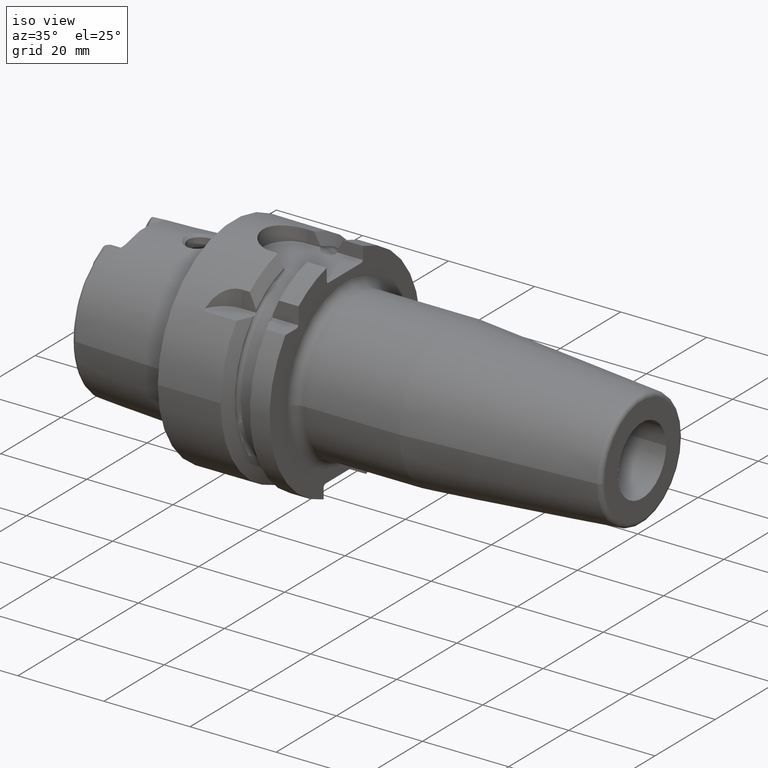
[diagram: clean part render]
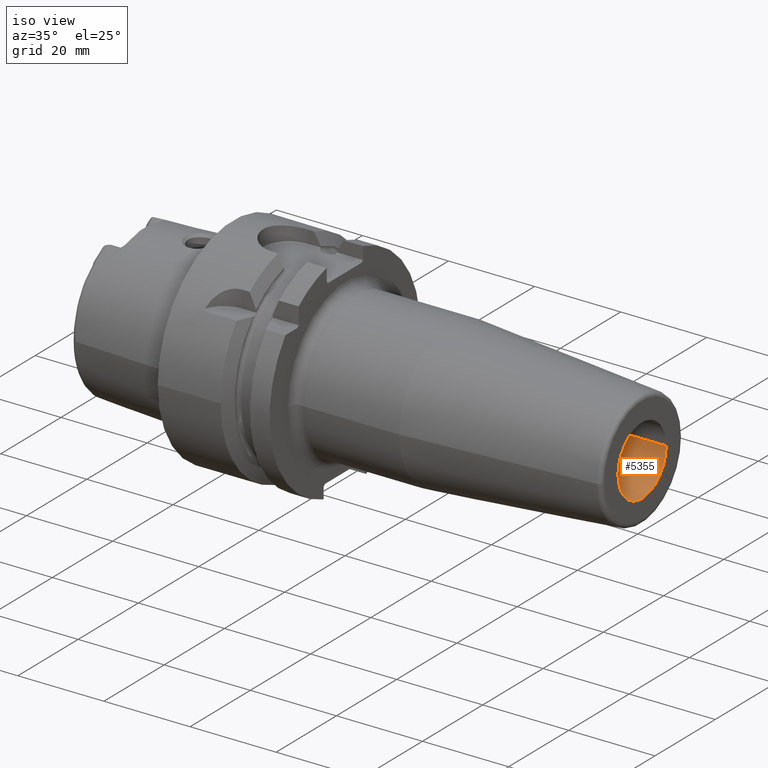
[diagram: same view with one face highlighted and labeled with its STEP entity id]
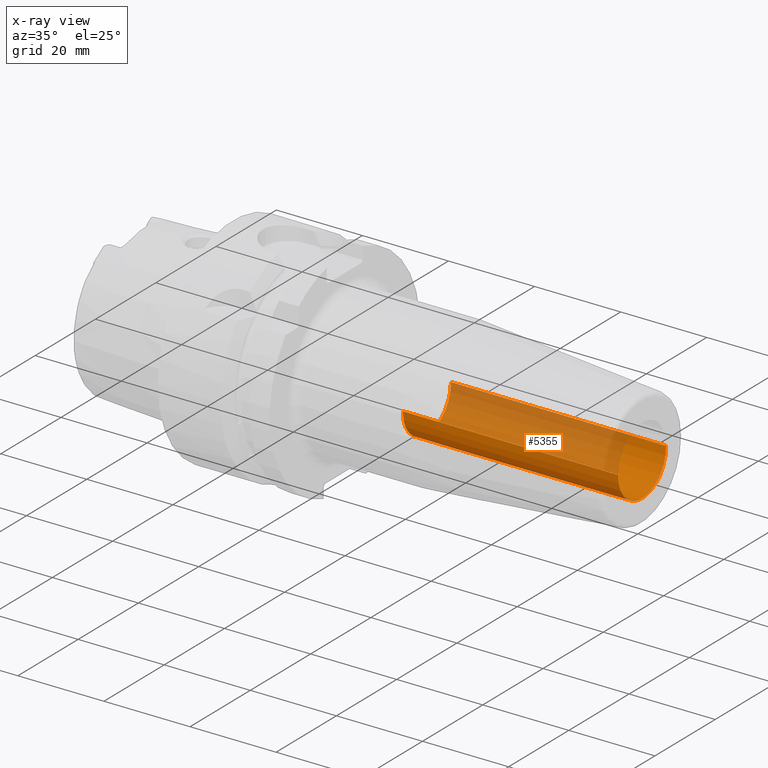
[diagram: x-ray of the same camera — body ghosted, the highlighted face saturated]
A machine part, iso view. The second image highlights one B-rep face of the part: STEP entity #5355.
The next image is the same camera in x-ray: the body ghosted, the highlighted face saturated — about 52% of this face is hidden behind the body in this view.
In plain terms, the highlighted cylindrical surface (partial cylindrical patch) has radius 8 mm, axis along (-1, 0, 0).
Its self-contained STEP definition (entity closure, byte-faithful):
#1963=CARTESIAN_POINT('',(9.5E1,0.E0,0.E0));
#1964=DIRECTION('',(-1.E0,0.E0,0.E0));
#1965=DIRECTION('',(0.E0,1.E0,0.E0));
#1966=AXIS2_PLACEMENT_3D('',#1963,#1964,#1965);
#1978=DIRECTION('',(-1.E0,0.E0,0.E0));
#1979=VECTOR('',#1978,5.E1);
#1980=CARTESIAN_POINT('',(9.5E1,-8.E0,0.E0));
#1981=LINE('',#1980,#1979);
#1982=DIRECTION('',(-1.E0,0.E0,0.E0));
#1983=VECTOR('',#1982,5.E1);
#1984=CARTESIAN_POINT('',(9.5E1,8.E0,0.E0));
#1985=LINE('',#1984,#1983);
#1991=CARTESIAN_POINT('',(4.5E1,0.E0,0.E0));
#1992=DIRECTION('',(-1.E0,0.E0,0.E0));
#1993=DIRECTION('',(0.E0,1.E0,0.E0));
#1994=AXIS2_PLACEMENT_3D('',#1991,#1992,#1993);
#3210=CARTESIAN_POINT('',(4.5E1,-8.E0,0.E0));
#3211=CARTESIAN_POINT('',(4.5E1,8.E0,0.E0));
#3212=VERTEX_POINT('',#3210);
#3213=VERTEX_POINT('',#3211);
#3214=CARTESIAN_POINT('',(9.5E1,-8.E0,0.E0));
#3215=CARTESIAN_POINT('',(9.5E1,8.E0,0.E0));
#3216=VERTEX_POINT('',#3214);
#3217=VERTEX_POINT('',#3215);
#5343=CARTESIAN_POINT('',(9.5E1,0.E0,0.E0));
#5344=DIRECTION('',(-1.E0,0.E0,0.E0));
#5345=DIRECTION('',(0.E0,-1.E0,0.E0));
#5346=AXIS2_PLACEMENT_3D('',#5343,#5344,#5345);
#5347=CYLINDRICAL_SURFACE('',#5346,8.E0);
#5348=ORIENTED_EDGE('',*,*,#5323,.T.);
#5349=ORIENTED_EDGE('',*,*,#5338,.T.);
#5351=ORIENTED_EDGE('',*,*,#5350,.F.);
#5352=ORIENTED_EDGE('',*,*,#5334,.F.);
#5353=EDGE_LOOP('',(#5348,#5349,#5351,#5352));
#5354=FACE_OUTER_BOUND('',#5353,.F.);
#5355=ADVANCED_FACE('',(#5354),#5347,.F.);
#1967=CIRCLE('',#1966,8.E0);
#1995=CIRCLE('',#1994,8.E0);
#5323=EDGE_CURVE('',#3217,#3216,#1967,.T.);
#5334=EDGE_CURVE('',#3217,#3213,#1985,.T.);
#5338=EDGE_CURVE('',#3216,#3212,#1981,.T.);
#5350=EDGE_CURVE('',#3213,#3212,#1995,.T.);